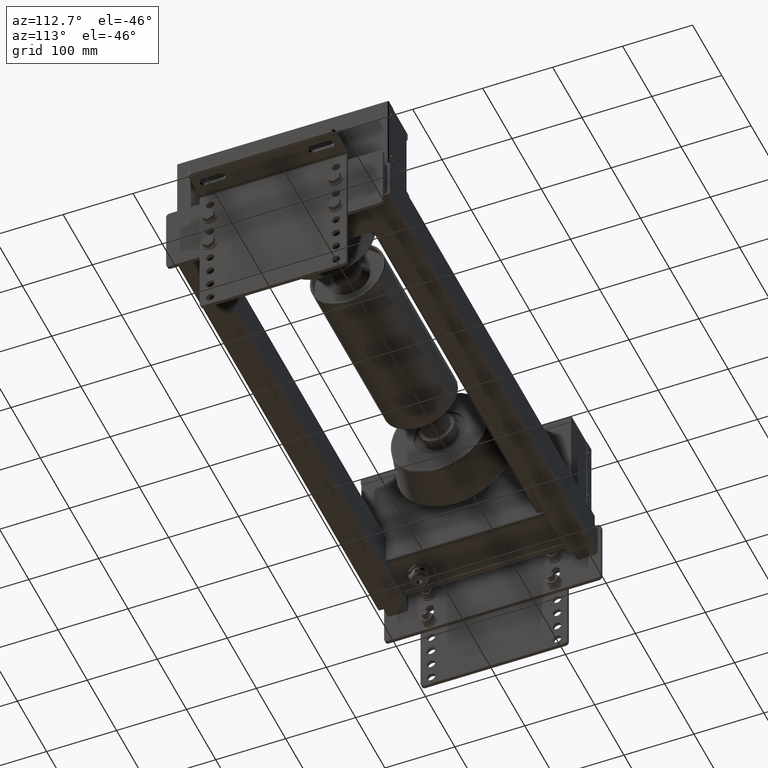
[diagram: clean part render]
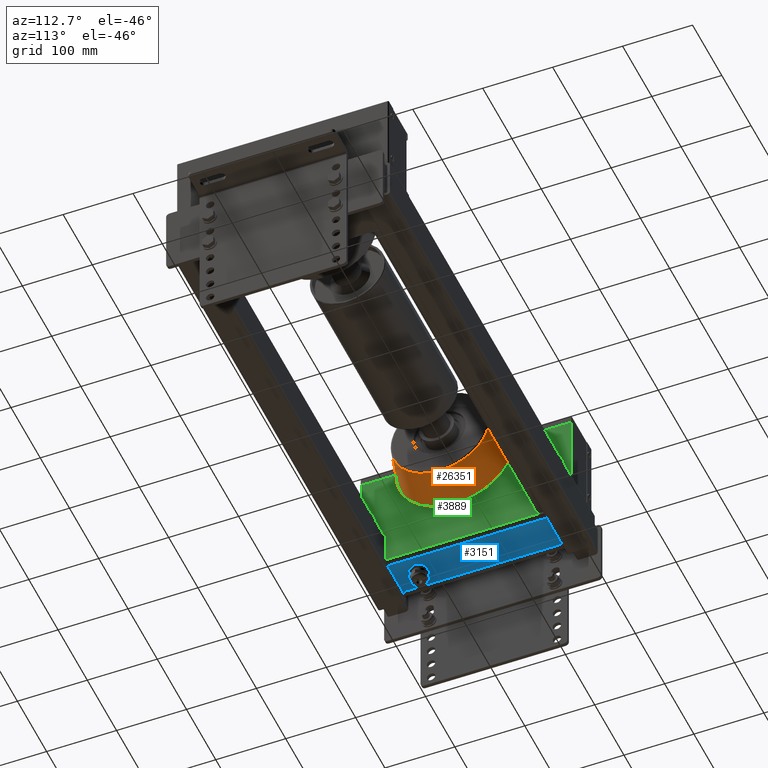
[diagram: same view with three faces highlighted in distinct colors, each labeled with its STEP entity id]
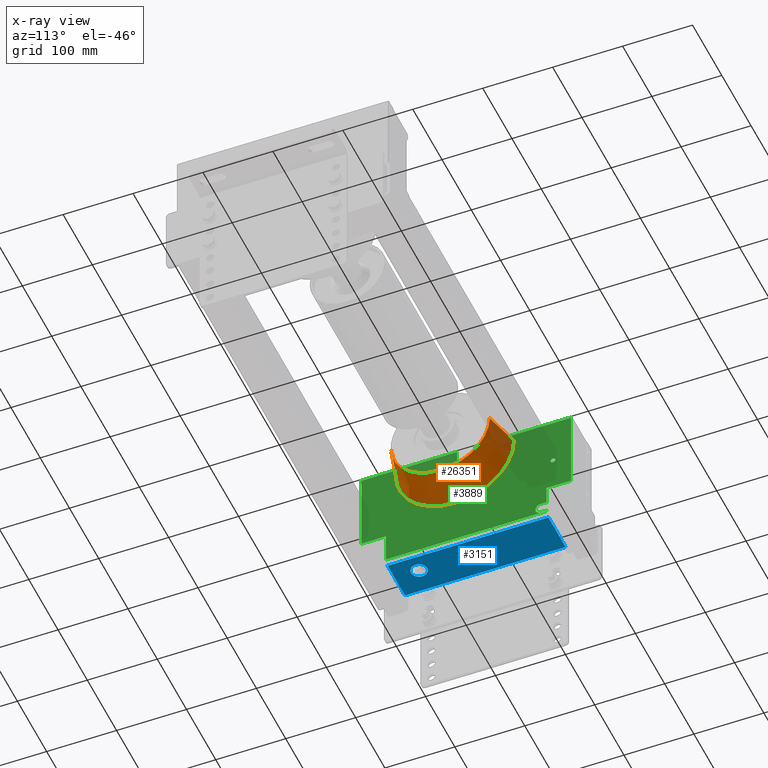
[diagram: x-ray of the same camera — body ghosted, the three highlighted faces saturated]
A machine part, auxiliary view with three faces highlighted in distinct colors.
The next image is the same camera in x-ray (body ghosted, the three faces saturated) — at least one of them is partly hidden behind the body in this view.
Their STEP definitions:

[orange] entity #26351 — the highlighted conical surface has half-angle 15 deg.
#26168=CARTESIAN_POINT('',(-25.647047612756236,-77.009291512063584,-8.665514E-015));
#26169=VERTEX_POINT('',#26168);
#26177=CARTESIAN_POINT('',(-25.647047612756232,-6.250000000000009,70.759291512063584));
#26178=VERTEX_POINT('',#26177);
#26179=CARTESIAN_POINT('',(-25.647047612756232,-6.250000000000000,0.0));
#26180=DIRECTION('',(-1.0,0.0,0.0));
#26181=DIRECTION('',(0.0,-1.0,0.0));
#26182=AXIS2_PLACEMENT_3D('',#26179,#26180,#26181);
#26183=CIRCLE('',#26182,70.759291512063584);
#26184=EDGE_CURVE('',#26169,#26178,#26183,.T.);
#26210=CARTESIAN_POINT('',(24.352952387243700,77.906751133619665,0.0));
#26211=VERTEX_POINT('',#26210);
#26212=CARTESIAN_POINT('',(-25.647047612756232,64.509291512063584,0.0));
#26213=VERTEX_POINT('',#26212);
#26214=CARTESIAN_POINT('',(24.352952387243700,77.906751133619665,0.0));
#26215=DIRECTION('',(-0.965925826289069,-0.258819045102520,0.0));
#26216=VECTOR('',#26215,51.763809020504063);
#26217=LINE('',#26214,#26216);
#26218=EDGE_CURVE('',#26211,#26213,#26217,.T.);
#26229=CARTESIAN_POINT('',(24.352952387243707,-90.406751133619665,-1.030623E-014));
#26230=VERTEX_POINT('',#26229);
#26238=CARTESIAN_POINT('',(24.352952387243707,-90.406751133619665,-1.030623E-014));
#26239=DIRECTION('',(-0.965925826289068,0.258819045102520,3.169619E-017));
#26240=VECTOR('',#26239,51.763809020504084);
#26241=LINE('',#26238,#26240);
#26242=EDGE_CURVE('',#26230,#26169,#26241,.T.);
#26278=CARTESIAN_POINT('',(24.352952387243704,-6.250000000000011,84.156751133619665));
#26279=VERTEX_POINT('',#26278);
#26287=CARTESIAN_POINT('',(24.352952387243700,-6.250000000000000,0.0));
#26288=DIRECTION('',(1.0,0.0,0.0));
#26289=DIRECTION('',(0.0,-1.0,0.0));
#26290=AXIS2_PLACEMENT_3D('',#26287,#26288,#26289);
#26291=CIRCLE('',#26290,84.156751133619665);
#26292=EDGE_CURVE('',#26279,#26230,#26291,.T.);
#26305=CARTESIAN_POINT('',(24.352952387243700,-6.250000000000000,0.0));
#26306=DIRECTION('',(1.0,0.0,0.0));
#26307=DIRECTION('',(0.0,-1.0,0.0));
#26308=AXIS2_PLACEMENT_3D('',#26305,#26306,#26307);
#26309=CIRCLE('',#26308,84.156751133619665);
#26310=EDGE_CURVE('',#26211,#26279,#26309,.T.);
#26332=CARTESIAN_POINT('',(7.105427E-014,-6.250000000000000,0.0));
#26333=DIRECTION('',(1.0,0.0,0.0));
#26334=DIRECTION('',(0.0,1.0,0.0));
#26335=AXIS2_PLACEMENT_3D('',#26332,#26333,#26334);
#26336=CONICAL_SURFACE('',#26335,77.631397208144165,14.999999999999964);
#26337=ORIENTED_EDGE('',*,*,#26218,.T.);
#26338=CARTESIAN_POINT('',(-25.647047612756232,-6.250000000000000,0.0));
#26339=DIRECTION('',(-1.0,0.0,0.0));
#26340=DIRECTION('',(0.0,-1.0,0.0));
#26341=AXIS2_PLACEMENT_3D('',#26338,#26339,#26340);
#26342=CIRCLE('',#26341,70.759291512063584);
#26343=EDGE_CURVE('',#26178,#26213,#26342,.T.);
#26344=ORIENTED_EDGE('',*,*,#26343,.F.);
#26345=ORIENTED_EDGE('',*,*,#26184,.F.);
#26346=ORIENTED_EDGE('',*,*,#26242,.F.);
#26347=ORIENTED_EDGE('',*,*,#26292,.F.);
#26348=ORIENTED_EDGE('',*,*,#26310,.F.);
#26349=EDGE_LOOP('',(#26337,#26344,#26345,#26346,#26347,#26348));
#26350=FACE_OUTER_BOUND('',#26349,.T.);
#26351=ADVANCED_FACE('',(#26350),#26336,.T.);

[blue] entity #3151 — the highlighted planar face has unit normal (-0, -0, -1).
#2906=CARTESIAN_POINT('',(79.999999999999091,-84.999999999999773,17.0));
#2907=VERTEX_POINT('',#2906);
#2916=CARTESIAN_POINT('',(79.999999999999091,-84.999999999999773,40.0));
#2917=VERTEX_POINT('',#2916);
#2918=CARTESIAN_POINT('',(79.999999999999091,-84.999999999999773,28.500000000000000));
#2919=DIRECTION('',(0.0,1.0,0.0));
#2920=DIRECTION('',(0.0,0.0,-1.0));
#2921=AXIS2_PLACEMENT_3D('',#2918,#2919,#2920);
#2922=CIRCLE('',#2921,11.500000000000000);
#2923=EDGE_CURVE('',#2917,#2907,#2922,.T.);
#3074=CARTESIAN_POINT('',(-115.000000000000910,-84.999999999999773,4.500000000000000));
#3075=VERTEX_POINT('',#3074);
#3093=CARTESIAN_POINT('',(114.999999999999090,-84.999999999999773,4.500000000000000));
#3094=VERTEX_POINT('',#3093);
#3102=CARTESIAN_POINT('',(114.999999999999090,-84.999999999999773,4.500000000000000));
#3103=DIRECTION('',(-1.0,0.0,0.0));
#3104=VECTOR('',#3103,230.0);
#3105=LINE('',#3102,#3104);
#3106=EDGE_CURVE('',#3094,#3075,#3105,.T.);
#3111=CARTESIAN_POINT('',(114.999999999999090,-84.999999999999773,-1.500000000000000));
#3112=DIRECTION('',(0.0,-1.0,0.0));
#3113=DIRECTION('',(0.0,0.0,-1.0));
#3114=AXIS2_PLACEMENT_3D('',#3111,#3112,#3113);
#3115=PLANE('',#3114);
#3116=ORIENTED_EDGE('',*,*,#3106,.F.);
#3117=CARTESIAN_POINT('',(114.999999999999090,-84.999999999999773,63.500000000000000));
#3118=VERTEX_POINT('',#3117);
#3119=CARTESIAN_POINT('',(114.999999999999090,-84.999999999999773,4.500000000000000));
#3120=DIRECTION('',(0.0,0.0,1.0));
#3121=VECTOR('',#3120,59.0);
#3122=LINE('',#3119,#3121);
#3123=EDGE_CURVE('',#3094,#3118,#3122,.T.);
#3124=ORIENTED_EDGE('',*,*,#3123,.T.);
#3125=CARTESIAN_POINT('',(-115.000000000000910,-84.999999999999773,63.500000000000000));
#3126=VERTEX_POINT('',#3125);
#3127=CARTESIAN_POINT('',(114.999999999999090,-84.999999999999773,63.500000000000000));
#3128=DIRECTION('',(-1.0,0.0,0.0));
#3129=VECTOR('',#3128,230.0);
#3130=LINE('',#3127,#3129);
#3131=EDGE_CURVE('',#3118,#3126,#3130,.T.);
#3132=ORIENTED_EDGE('',*,*,#3131,.T.);
#3133=CARTESIAN_POINT('',(-115.000000000000910,-84.999999999999773,4.500000000000000));
#3134=DIRECTION('',(0.0,0.0,1.0));
#3135=VECTOR('',#3134,59.0);
#3136=LINE('',#3133,#3135);
#3137=EDGE_CURVE('',#3075,#3126,#3136,.T.);
#3138=ORIENTED_EDGE('',*,*,#3137,.F.);
#3139=EDGE_LOOP('',(#3116,#3124,#3132,#3138));
#3140=FACE_OUTER_BOUND('',#3139,.T.);
#3141=CARTESIAN_POINT('',(79.999999999999091,-84.999999999999773,28.500000000000000));
#3142=DIRECTION('',(0.0,1.0,0.0));
#3143=DIRECTION('',(0.0,0.0,-1.0));
#3144=AXIS2_PLACEMENT_3D('',#3141,#3142,#3143);
#3145=CIRCLE('',#3144,11.500000000000000);
#3146=EDGE_CURVE('',#2907,#2917,#3145,.T.);
#3147=ORIENTED_EDGE('',*,*,#3146,.T.);
#3148=ORIENTED_EDGE('',*,*,#2923,.T.);
#3149=EDGE_LOOP('',(#3147,#3148));
#3150=FACE_BOUND('',#3149,.T.);
#3151=ADVANCED_FACE('',(#3140,#3150),#3115,.T.);

[green] entity #3889 — the highlighted planar face has unit normal (-1, -0, 0).
#2572=CARTESIAN_POINT('',(-22.141504294496144,3.483495705504765,-1.500000000000000));
#2573=VERTEX_POINT('',#2572);
#2589=CARTESIAN_POINT('',(-30.891504294496144,3.483495705504765,-1.500000000000000));
#2590=VERTEX_POINT('',#2589);
#2597=CARTESIAN_POINT('',(-26.516504294496144,3.483495705504765,-1.500000000000000));
#2598=DIRECTION('',(0.0,0.0,-1.0));
#2599=DIRECTION('',(1.0,0.0,0.0));
#2600=AXIS2_PLACEMENT_3D('',#2597,#2598,#2599);
#2601=CIRCLE('',#2600,4.375000000000000);
#2602=EDGE_CURVE('',#2590,#2573,#2601,.T.);
#2614=CARTESIAN_POINT('',(30.891504294494780,3.483495705504765,-1.500000000000000));
#2615=VERTEX_POINT('',#2614);
#2631=CARTESIAN_POINT('',(22.141504294494780,3.483495705504765,-1.500000000000000));
#2632=VERTEX_POINT('',#2631);
#2639=CARTESIAN_POINT('',(26.516504294494780,3.483495705504765,-1.500000000000000));
#2640=DIRECTION('',(0.0,0.0,-1.0));
#2641=DIRECTION('',(1.0,0.0,0.0));
#2642=AXIS2_PLACEMENT_3D('',#2639,#2640,#2641);
#2643=CIRCLE('',#2642,4.375000000000000);
#2644=EDGE_CURVE('',#2632,#2615,#2643,.T.);
#2656=CARTESIAN_POINT('',(30.891504294494780,56.516504294495917,-1.500000000000000));
#2657=VERTEX_POINT('',#2656);
#2673=CARTESIAN_POINT('',(22.141504294494780,56.516504294495917,-1.500000000000000));
#2674=VERTEX_POINT('',#2673);
#2681=CARTESIAN_POINT('',(26.516504294494780,56.516504294495917,-1.500000000000000));
#2682=DIRECTION('',(0.0,0.0,-1.0));
#2683=DIRECTION('',(1.0,0.0,0.0));
#2684=AXIS2_PLACEMENT_3D('',#2681,#2682,#2683);
#2685=CIRCLE('',#2684,4.375000000000000);
#2686=EDGE_CURVE('',#2674,#2657,#2685,.T.);
#2698=CARTESIAN_POINT('',(-22.141504294496372,56.516504294495917,-1.500000000000000));
#2699=VERTEX_POINT('',#2698);
#2715=CARTESIAN_POINT('',(-30.891504294496372,56.516504294495917,-1.500000000000000));
#2716=VERTEX_POINT('',#2715);
#2723=CARTESIAN_POINT('',(-26.516504294496372,56.516504294495917,-1.500000000000000));
#2724=DIRECTION('',(0.0,0.0,-1.0));
#2725=DIRECTION('',(1.0,0.0,0.0));
#2726=AXIS2_PLACEMENT_3D('',#2723,#2724,#2725);
#2727=CIRCLE('',#2726,4.375000000000000);
#2728=EDGE_CURVE('',#2716,#2699,#2727,.T.);
#2822=CARTESIAN_POINT('',(-57.550000000000907,66.000000000000227,-1.500000000000000));
#2823=VERTEX_POINT('',#2822);
#2832=CARTESIAN_POINT('',(-64.450000000000912,66.000000000000227,-1.500000000000000));
#2833=VERTEX_POINT('',#2832);
#2834=CARTESIAN_POINT('',(-61.000000000000909,66.000000000000227,-1.500000000000000));
#2835=DIRECTION('',(0.0,0.0,1.0));
#2836=DIRECTION('',(1.0,0.0,0.0));
#2837=AXIS2_PLACEMENT_3D('',#2834,#2835,#2836);
#2838=CIRCLE('',#2837,3.450000000000000);
#2839=EDGE_CURVE('',#2833,#2823,#2838,.T.);
#2864=CARTESIAN_POINT('',(-120.550000000000910,14.000000000000227,-1.500000000000000));
#2865=VERTEX_POINT('',#2864);
#2874=CARTESIAN_POINT('',(-127.450000000000910,14.000000000000227,-1.500000000000000));
#2875=VERTEX_POINT('',#2874);
#2876=CARTESIAN_POINT('',(-124.000000000000910,14.000000000000227,-1.500000000000000));
#2877=DIRECTION('',(0.0,0.0,1.0));
#2878=DIRECTION('',(1.0,0.0,0.0));
#2879=AXIS2_PLACEMENT_3D('',#2876,#2877,#2878);
#2880=CIRCLE('',#2879,3.450000000000000);
#2881=EDGE_CURVE('',#2875,#2865,#2880,.T.);
#3076=CARTESIAN_POINT('',(-115.000000000001360,-78.999999999999773,-1.500000000000000));
#3077=VERTEX_POINT('',#3076);
#3085=CARTESIAN_POINT('',(115.0,-78.999999999999773,-1.500000000000000));
#3086=VERTEX_POINT('',#3085);
#3087=CARTESIAN_POINT('',(-115.000000000001360,-78.999999999999773,-1.500000000000000));
#3088=DIRECTION('',(1.0,0.0,0.0));
#3089=VECTOR('',#3088,230.000000000001360);
#3090=LINE('',#3087,#3089);
#3091=EDGE_CURVE('',#3077,#3086,#3090,.T.);
#3158=CARTESIAN_POINT('',(114.999999999999090,-34.999999999999773,-1.500000000000000));
#3159=VERTEX_POINT('',#3158);
#3160=CARTESIAN_POINT('',(114.999999999999090,-34.999999999999773,-1.500000000000000));
#3161=DIRECTION('',(0.0,-1.0,0.0));
#3162=VECTOR('',#3161,44.0);
#3163=LINE('',#3160,#3162);
#3164=EDGE_CURVE('',#3159,#3086,#3163,.T.);
#3373=CARTESIAN_POINT('',(-124.000000000000910,14.000000000000227,-1.500000000000000));
#3374=DIRECTION('',(0.0,0.0,1.0));
#3375=DIRECTION('',(1.0,0.0,0.0));
#3376=AXIS2_PLACEMENT_3D('',#3373,#3374,#3375);
#3377=CIRCLE('',#3376,3.450000000000000);
#3378=EDGE_CURVE('',#2865,#2875,#3377,.T.);
#3397=CARTESIAN_POINT('',(-61.000000000000909,66.000000000000227,-1.500000000000000));
#3398=DIRECTION('',(0.0,0.0,1.0));
#3399=DIRECTION('',(1.0,0.0,0.0));
#3400=AXIS2_PLACEMENT_3D('',#3397,#3398,#3399);
#3401=CIRCLE('',#3400,3.450000000000000);
#3402=EDGE_CURVE('',#2823,#2833,#3401,.T.);
#3639=CARTESIAN_POINT('',(12.999999999999091,85.000000000000455,-1.500000000000000));
#3640=VERTEX_POINT('',#3639);
#3641=CARTESIAN_POINT('',(149.999999999999090,85.000000000000227,-1.500000000000000));
#3642=VERTEX_POINT('',#3641);
#3643=CARTESIAN_POINT('',(12.999999999999091,85.000000000000455,-1.500000000000000));
#3644=DIRECTION('',(1.0,0.0,0.0));
#3645=VECTOR('',#3644,137.0);
#3646=LINE('',#3643,#3645);
#3647=EDGE_CURVE('',#3640,#3642,#3646,.T.);
#3686=CARTESIAN_POINT('',(149.999999999999090,-34.999999999999773,-1.500000000000000));
#3687=VERTEX_POINT('',#3686);
#3688=CARTESIAN_POINT('',(149.999999999999090,-34.999999999999773,-1.500000000000000));
#3689=DIRECTION('',(-1.0,0.0,0.0));
#3690=VECTOR('',#3689,35.0);
#3691=LINE('',#3688,#3690);
#3692=EDGE_CURVE('',#3687,#3159,#3691,.T.);
#3718=CARTESIAN_POINT('',(-13.000000000000682,85.000000000000227,-1.500000000000000));
#3719=VERTEX_POINT('',#3718);
#3726=CARTESIAN_POINT('',(-150.000000000000910,85.000000000000227,-1.500000000000000));
#3727=VERTEX_POINT('',#3726);
#3728=CARTESIAN_POINT('',(-150.000000000000910,85.000000000000227,-1.500000000000000));
#3729=DIRECTION('',(1.0,0.0,0.0));
#3730=VECTOR('',#3729,137.000000000000230);
#3731=LINE('',#3728,#3730);
#3732=EDGE_CURVE('',#3727,#3719,#3731,.T.);
#3745=CARTESIAN_POINT('',(-1.774273069271612,-15.615440189898896,-1.500000000000000));
#3746=DIRECTION('',(0.0,0.0,1.0));
#3747=DIRECTION('',(1.0,0.0,0.0));
#3748=AXIS2_PLACEMENT_3D('',#3745,#3746,#3747);
#3749=PLANE('',#3748);
#3750=ORIENTED_EDGE('',*,*,#3091,.F.);
#3751=CARTESIAN_POINT('',(-115.000000000000910,-77.999999999999773,-1.500000000000000));
#3752=VERTEX_POINT('',#3751);
#3753=CARTESIAN_POINT('',(-115.000000000001360,-78.999999999999773,-1.500000000000000));
#3754=DIRECTION('',(4.547474E-013,1.0,0.0));
#3755=VECTOR('',#3754,1.0);
#3756=LINE('',#3753,#3755);
#3757=EDGE_CURVE('',#3077,#3752,#3756,.T.);
#3758=ORIENTED_EDGE('',*,*,#3757,.T.);
#3759=CARTESIAN_POINT('',(-107.000000000000910,-77.999999999999773,-1.500000000000000));
#3760=VERTEX_POINT('',#3759);
#3761=CARTESIAN_POINT('',(-115.000000000000910,-77.999999999999773,-1.500000000000000));
#3762=DIRECTION('',(1.0,0.0,0.0));
#3763=VECTOR('',#3762,8.0);
#3764=LINE('',#3761,#3763);
#3765=EDGE_CURVE('',#3752,#3760,#3764,.T.);
#3766=ORIENTED_EDGE('',*,*,#3765,.T.);
#3767=CARTESIAN_POINT('',(-107.000000000000910,-61.999999999999773,-1.500000000000000));
#3768=VERTEX_POINT('',#3767);
#3769=CARTESIAN_POINT('',(-107.000000000000910,-69.999999999999773,-1.500000000000000));
#3770=DIRECTION('',(0.0,0.0,1.0));
#3771=DIRECTION('',(1.0,0.0,0.0));
#3772=AXIS2_PLACEMENT_3D('',#3769,#3770,#3771);
#3773=CIRCLE('',#3772,8.0);
#3774=EDGE_CURVE('',#3760,#3768,#3773,.T.);
#3775=ORIENTED_EDGE('',*,*,#3774,.T.);
#3776=CARTESIAN_POINT('',(-115.000000000000910,-61.999999999999773,-1.500000000000000));
#3777=VERTEX_POINT('',#3776);
#3778=CARTESIAN_POINT('',(-107.000000000000910,-61.999999999999773,-1.500000000000000));
#3779=DIRECTION('',(-1.0,0.0,0.0));
#3780=VECTOR('',#3779,8.0);
#3781=LINE('',#3778,#3780);
#3782=EDGE_CURVE('',#3768,#3777,#3781,.T.);
#3783=ORIENTED_EDGE('',*,*,#3782,.T.);
#3784=CARTESIAN_POINT('',(-115.000000000000910,-34.999999999999773,-1.500000000000000));
#3785=VERTEX_POINT('',#3784);
#3786=CARTESIAN_POINT('',(-115.000000000000910,-61.999999999999773,-1.500000000000000));
#3787=DIRECTION('',(0.0,1.0,0.0));
#3788=VECTOR('',#3787,27.0);
#3789=LINE('',#3786,#3788);
#3790=EDGE_CURVE('',#3777,#3785,#3789,.T.);
#3791=ORIENTED_EDGE('',*,*,#3790,.T.);
#3792=CARTESIAN_POINT('',(-150.000000000000910,-34.999999999999773,-1.500000000000000));
#3793=VERTEX_POINT('',#3792);
#3794=CARTESIAN_POINT('',(-115.000000000000910,-34.999999999999773,-1.500000000000000));
#3795=DIRECTION('',(-1.0,0.0,0.0));
#3796=VECTOR('',#3795,35.0);
#3797=LINE('',#3794,#3796);
#3798=EDGE_CURVE('',#3785,#3793,#3797,.T.);
#3799=ORIENTED_EDGE('',*,*,#3798,.T.);
#3800=CARTESIAN_POINT('',(-150.000000000000910,-34.999999999999773,-1.500000000000000));
#3801=DIRECTION('',(0.0,1.0,0.0));
#3802=VECTOR('',#3801,120.0);
#3803=LINE('',#3800,#3802);
#3804=EDGE_CURVE('',#3793,#3727,#3803,.T.);
#3805=ORIENTED_EDGE('',*,*,#3804,.T.);
#3806=ORIENTED_EDGE('',*,*,#3732,.T.);
#3807=CARTESIAN_POINT('',(-13.000000000001137,57.590759322643180,-1.500000000000000));
#3808=VERTEX_POINT('',#3807);
#3809=CARTESIAN_POINT('',(-13.000000000000682,85.000000000000227,-1.500000000000000));
#3810=DIRECTION('',(0.0,-1.0,0.0));
#3811=VECTOR('',#3810,27.409240677357047);
#3812=LINE('',#3809,#3811);
#3813=EDGE_CURVE('',#3719,#3808,#3812,.T.);
#3814=ORIENTED_EDGE('',*,*,#3813,.T.);
#3815=CARTESIAN_POINT('',(12.999999999999091,57.590759322643180,-1.500000000000000));
#3816=VERTEX_POINT('',#3815);
#3817=CARTESIAN_POINT('',(1.818989E-012,29.999999999996817,-1.500000000000000));
#3818=DIRECTION('',(0.0,0.0,1.0));
#3819=DIRECTION('',(1.0,0.0,0.0));
#3820=AXIS2_PLACEMENT_3D('',#3817,#3818,#3819);
#3821=CIRCLE('',#3820,30.500000000000000);
#3822=EDGE_CURVE('',#3808,#3816,#3821,.T.);
#3823=ORIENTED_EDGE('',*,*,#3822,.T.);
#3824=CARTESIAN_POINT('',(12.999999999999091,57.590759322643180,-1.500000000000000));
#3825=DIRECTION('',(0.0,1.0,0.0));
#3826=VECTOR('',#3825,27.409240677357275);
#3827=LINE('',#3824,#3826);
#3828=EDGE_CURVE('',#3816,#3640,#3827,.T.);
#3829=ORIENTED_EDGE('',*,*,#3828,.T.);
#3830=ORIENTED_EDGE('',*,*,#3647,.T.);
#3831=CARTESIAN_POINT('',(149.999999999999090,85.000000000000227,-1.500000000000000));
#3832=DIRECTION('',(0.0,-1.0,0.0));
#3833=VECTOR('',#3832,120.0);
#3834=LINE('',#3831,#3833);
#3835=EDGE_CURVE('',#3642,#3687,#3834,.T.);
#3836=ORIENTED_EDGE('',*,*,#3835,.T.);
#3837=ORIENTED_EDGE('',*,*,#3692,.T.);
#3838=ORIENTED_EDGE('',*,*,#3164,.T.);
#3839=EDGE_LOOP('',(#3750,#3758,#3766,#3775,#3783,#3791,#3799,#3805,#3806,#3814,#3823,#3829,#3830,#3836,#3837,#3838));
#3840=FACE_OUTER_BOUND('',#3839,.T.);
#3841=ORIENTED_EDGE('',*,*,#3378,.T.);
#3842=ORIENTED_EDGE('',*,*,#2881,.T.);
#3843=EDGE_LOOP('',(#3841,#3842));
#3844=FACE_BOUND('',#3843,.T.);
#3845=ORIENTED_EDGE('',*,*,#3402,.T.);
#3846=ORIENTED_EDGE('',*,*,#2839,.T.);
#3847=EDGE_LOOP('',(#3845,#3846));
#3848=FACE_BOUND('',#3847,.T.);
#3849=CARTESIAN_POINT('',(-26.516504294496372,56.516504294495917,-1.500000000000000));
#3850=DIRECTION('',(0.0,0.0,-1.0));
#3851=DIRECTION('',(1.0,0.0,0.0));
#3852=AXIS2_PLACEMENT_3D('',#3849,#3850,#3851);
#3853=CIRCLE('',#3852,4.375000000000000);
#3854=EDGE_CURVE('',#2699,#2716,#3853,.T.);
#3855=ORIENTED_EDGE('',*,*,#3854,.F.);
#3856=ORIENTED_EDGE('',*,*,#2728,.F.);
#3857=EDGE_LOOP('',(#3855,#3856));
#3858=FACE_BOUND('',#3857,.T.);
#3859=CARTESIAN_POINT('',(26.516504294494780,56.516504294495917,-1.500000000000000));
#3860=DIRECTION('',(0.0,0.0,-1.0));
#3861=DIRECTION('',(1.0,0.0,0.0));
#3862=AXIS2_PLACEMENT_3D('',#3859,#3860,#3861);
#3863=CIRCLE('',#3862,4.375000000000000);
#3864=EDGE_CURVE('',#2657,#2674,#3863,.T.);
#3865=ORIENTED_EDGE('',*,*,#3864,.F.);
#3866=ORIENTED_EDGE('',*,*,#2686,.F.);
#3867=EDGE_LOOP('',(#3865,#3866));
#3868=FACE_BOUND('',#3867,.T.);
#3869=CARTESIAN_POINT('',(26.516504294494780,3.483495705504765,-1.500000000000000));
#3870=DIRECTION('',(0.0,0.0,-1.0));
#3871=DIRECTION('',(1.0,0.0,0.0));
#3872=AXIS2_PLACEMENT_3D('',#3869,#3870,#3871);
#3873=CIRCLE('',#3872,4.375000000000000);
#3874=EDGE_CURVE('',#2615,#2632,#3873,.T.);
#3875=ORIENTED_EDGE('',*,*,#3874,.F.);
#3876=ORIENTED_EDGE('',*,*,#2644,.F.);
#3877=EDGE_LOOP('',(#3875,#3876));
#3878=FACE_BOUND('',#3877,.T.);
#3879=CARTESIAN_POINT('',(-26.516504294496144,3.483495705504765,-1.500000000000000));
#3880=DIRECTION('',(0.0,0.0,-1.0));
#3881=DIRECTION('',(1.0,0.0,0.0));
#3882=AXIS2_PLACEMENT_3D('',#3879,#3880,#3881);
#3883=CIRCLE('',#3882,4.375000000000000);
#3884=EDGE_CURVE('',#2573,#2590,#3883,.T.);
#3885=ORIENTED_EDGE('',*,*,#3884,.F.);
#3886=ORIENTED_EDGE('',*,*,#2602,.F.);
#3887=EDGE_LOOP('',(#3885,#3886));
#3888=FACE_BOUND('',#3887,.T.);
#3889=ADVANCED_FACE('',(#3840,#3844,#3848,#3858,#3868,#3878,#3888),#3749,.F.);